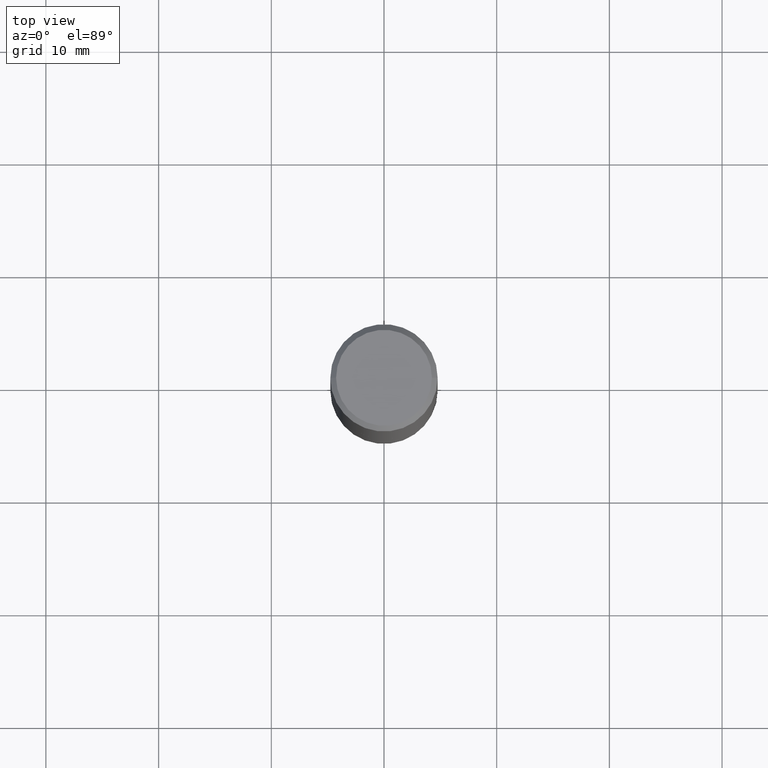
[diagram: clean part render]
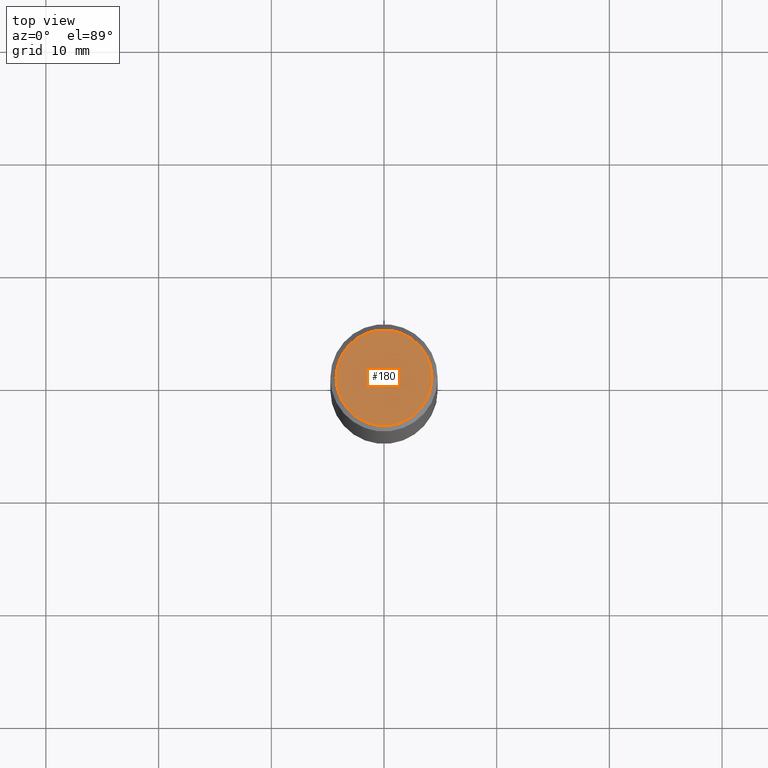
[diagram: same view with one face highlighted and labeled with its STEP entity id]
A machine part, top view. The second image highlights one B-rep face of the part: STEP entity #180.
In plain terms, the highlighted planar face has unit normal (0, -0, -1).
Its self-contained STEP definition (entity closure, byte-faithful):
#15 = FACE_OUTER_BOUND ( 'NONE', #185, .T. ) ;
#27 = DIRECTION ( 'NONE',  ( 1.000000000000000000, -6.982962677686266711E-15, 4.876502603340349702E-29 ) ) ;
#28 = AXIS2_PLACEMENT_3D ( 'NONE', #372, #208, #199 ) ;
#45 = CIRCLE ( 'NONE', #206, 0.1674999999999998435 ) ;
#46 = ORIENTED_EDGE ( 'NONE', *, *, #291, .T. ) ;
#84 = DIRECTION ( 'NONE',  ( -2.445468806185136597E-29, 3.491481338843145583E-15, 1.000000000000000000 ) ) ;
#89 = CARTESIAN_POINT ( 'NONE',  ( -3.131554243005659264E-46, 4.471029511141341874E-32, 1.280553747030123384E-17 ) ) ;
#134 = AXIS2_PLACEMENT_3D ( 'NONE', #211, #84, #348 ) ;
#142 = PLANE ( 'NONE',  #28 ) ;
#148 = ORIENTED_EDGE ( 'NONE', *, *, #360, .T. ) ;
#152 = DIRECTION ( 'NONE',  ( -2.445468806185136597E-29, 3.491481338843145583E-15, 1.000000000000000000 ) ) ;
#164 = VERTEX_POINT ( 'NONE', #361 ) ;
#171 = VERTEX_POINT ( 'NONE', #225 ) ;
#180 = ADVANCED_FACE ( 'NONE', ( #15 ), #142, .F. ) ;
#185 = EDGE_LOOP ( 'NONE', ( #148, #46 ) ) ;
#199 = DIRECTION ( 'NONE',  ( -1.000000000000000000, 6.982962677686265922E-15, -4.876176775795935793E-29 ) ) ;
#206 = AXIS2_PLACEMENT_3D ( 'NONE', #89, #152, #27 ) ;
#208 = DIRECTION ( 'NONE',  ( 2.438088387897960049E-29, -3.491481338843145188E-15, -1.000000000000000000 ) ) ;
#211 = CARTESIAN_POINT ( 'NONE',  ( -3.131554243005659264E-46, 4.471029511141341874E-32, 1.280553747030123384E-17 ) ) ;
#216 = CIRCLE ( 'NONE', #134, 0.1674999999999998435 ) ;
#225 = CARTESIAN_POINT ( 'NONE',  ( -0.1674999999999998435, 1.204561061900879864E-15, 1.280553747029293077E-17 ) ) ;
#291 = EDGE_CURVE ( 'NONE', #164, #171, #216, .T. ) ;
#348 = DIRECTION ( 'NONE',  ( 1.000000000000000000, -6.982962677686266711E-15, 4.876502603340349702E-29 ) ) ;
#360 = EDGE_CURVE ( 'NONE', #171, #164, #45, .T. ) ;
#361 = CARTESIAN_POINT ( 'NONE',  ( 0.1674999999999998435, -1.252653207992877302E-15, 1.280553747030970331E-17 ) ) ;
#372 = CARTESIAN_POINT ( 'NONE',  ( 1.169646248512448609E-15, 0.1674999999999998435, -5.784203555210757353E-16 ) ) ;